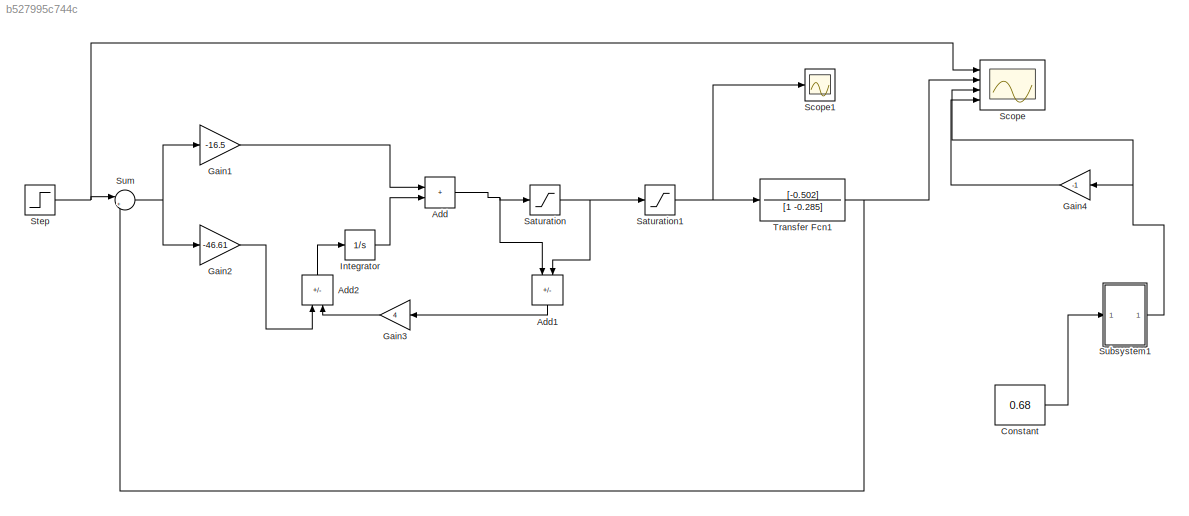
MODEL slx_b527995c744c
KIND model
CONFIG AbsTol = auto
CONFIG EnableMultiTasking = off
CONFIG FixedStep = auto
CONFIG MaxStep = auto
CONFIG MinStep = auto
CONFIG RelTol = 1e-3
CONFIG SampleTimeConstraint = Unconstrained
CONFIG Solver = VariableStepAuto
CONFIG SolverName = VariableStepAuto
CONFIG StartTime = 0.0
CONFIG StopTime = 5
BLOCK [Sum] Add
  IconShape = rectangular
  Ports = [2, 1]
BLOCK [Sum] Add1
  IconShape = rectangular
  Inputs = +-
  NameLocation = right
  Ports = [2, 1]
BLOCK [Sum] Add2
  IconShape = rectangular
  Inputs = +-
  NameLocation = right
  Ports = [2, 1]
BLOCK [Constant] Constant
  Value = 0.68
BLOCK [Gain] Gain1
  Gain = -16.5
BLOCK [Gain] Gain2
  Gain = -46.61
BLOCK [Gain] Gain3
  Gain = 4
BLOCK [Gain] Gain4
  Gain = -1
BLOCK [Integrator] Integrator
  Ports = [1, 1]
BLOCK [Saturate] Saturation
  LowerLimit = -0.6
  UpperLimit = 0.6
BLOCK [Saturate] Saturation1
  LowerLimit = -0.6
  UpperLimit = 0.6
BLOCK [Scope] Scope
  Floating = off
  NumInputPorts = 4
  Ports = [4]
  ScopeSpecificationString = Simulink.scopes.TimeScopeBlockCfg('CurrentConfiguration', extmgr.ConfigurationSet(extmgr.Configuration('Core','General UI',true),extmgr.Configuration('Core','Source UI',true),extmgr.Configuration('Sources','WiredSimulink',true),extmgr.Configuration('Visuals','Time Domain',true,'SerializedDisplays',{struct('MinYLimReal','-1.57','MaxYLimReal','2.1087','YLabelReal','','MinYLimMag','0.00000','MaxYLimM...<+1426ch>
BLOCK [Scope] Scope1
  Floating = off
  NumInputPorts = 1
  Ports = [1]
  ScopeSpecificationString = Simulink.scopes.TimeScopeBlockCfg('CurrentConfiguration', extmgr.ConfigurationSet(extmgr.Configuration('Core','General UI',true),extmgr.Configuration('Core','Source UI',true),extmgr.Configuration('Sources','WiredSimulink',true,'DataLoggingVariableName','ScopeData1'),extmgr.Configuration('Visuals','Time Domain',true,'SerializedDisplays',{struct('MinYLimReal','-0.73956','MaxYLimReal','0.65602','YLab...<+1399ch>
BLOCK [Step] Step
  After = 0.7853
  SampleTime = 0
  Time = 0
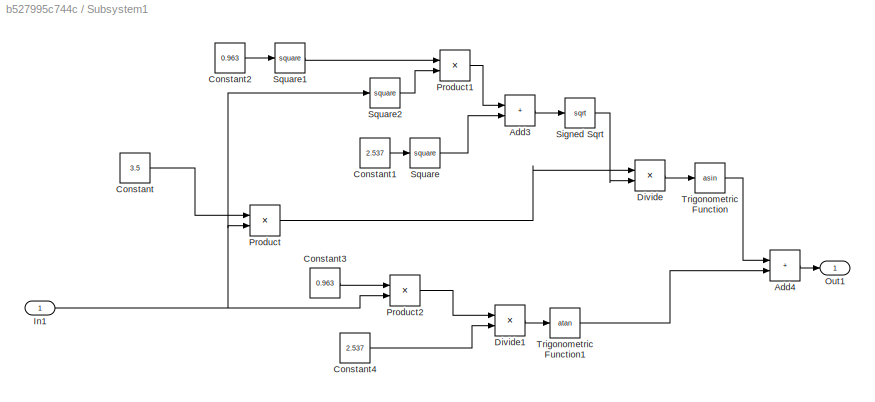
BLOCK [SubSystem] Subsystem1
  Ports = [1, 1]
  RequestExecContextInheritance = off
BLOCK [Sum] Subsystem1/Add3
  IconShape = rectangular
  Ports = [2, 1]
BLOCK [Sum] Subsystem1/Add4
  IconShape = rectangular
  Ports = [2, 1]
BLOCK [Constant] Subsystem1/Constant
  Value = 3.5
BLOCK [Constant] Subsystem1/Constant1
  Value = 2.537
BLOCK [Constant] Subsystem1/Constant2
  Value = 0.963
BLOCK [Constant] Subsystem1/Constant3
  Value = 0.963
BLOCK [Constant] Subsystem1/Constant4
  Value = 2.537
BLOCK [Product] Subsystem1/Divide
  Inputs = */
  Ports = [2, 1]
BLOCK [Product] Subsystem1/Divide1
  Inputs = */
  Ports = [2, 1]
BLOCK [Inport] Subsystem1/In1
BLOCK [Outport] Subsystem1/Out1
BLOCK [Product] Subsystem1/Product
  Ports = [2, 1]
BLOCK [Product] Subsystem1/Product1
  Ports = [2, 1]
BLOCK [Product] Subsystem1/Product2
  Ports = [2, 1]
BLOCK [Sqrt] Subsystem1/Signed Sqrt
BLOCK [Math] Subsystem1/Square
  Operator = square
  Ports = [1, 1]
BLOCK [Math] Subsystem1/Square1
  Operator = square
  Ports = [1, 1]
BLOCK [Math] Subsystem1/Square2
  Operator = square
  Ports = [1, 1]
BLOCK [Trigonometry] Subsystem1/Trigonometric Function
  Operator = asin
  Ports = [1, 1]
BLOCK [Trigonometry] Subsystem1/Trigonometric Function1
  Operator = atan
  Ports = [1, 1]
BLOCK [Sum] Sum
  Inputs = |+-
  Ports = [2, 1]
BLOCK [TransferFcn] Transfer Fcn1
  Denominator = [1 -0.285]
  Numerator = [-0.502]
LINE Add1:1 -> Gain3:1
LINE Add2:1 -> Integrator:1
NET Add:1 -> Add1:1, Saturation:1
LINE Constant:1 -> Subsystem1:1
LINE Gain1:1 -> Add:1
LINE Gain2:1 -> Add2:1
LINE Gain3:1 -> Add2:2
LINE Gain4:1 -> Scope:4
LINE Integrator:1 -> Add:2
NET Saturation1:1 -> Scope1:1, Transfer Fcn1:1
NET Saturation:1 -> Add1:2, Saturation1:1
NET Step:1 -> Scope:1, Sum:1
LINE Subsystem1/Add3:1 -> Subsystem1/Signed Sqrt:1
LINE Subsystem1/Add4:1 -> Subsystem1/Out1:1
LINE Subsystem1/Constant1:1 -> Subsystem1/Square:1
LINE Subsystem1/Constant2:1 -> Subsystem1/Square1:1
LINE Subsystem1/Constant3:1 -> Subsystem1/Product2:1
LINE Subsystem1/Constant4:1 -> Subsystem1/Divide1:2
LINE Subsystem1/Constant:1 -> Subsystem1/Product:1
LINE Subsystem1/Divide1:1 -> Subsystem1/Trigonometric Function1:1
LINE Subsystem1/Divide:1 -> Subsystem1/Trigonometric Function:1
NET Subsystem1/In1:1 -> Subsystem1/Product2:2, Subsystem1/Product:2, Subsystem1/Square2:1
LINE Subsystem1/Product1:1 -> Subsystem1/Add3:1
LINE Subsystem1/Product2:1 -> Subsystem1/Divide1:1
LINE Subsystem1/Product:1 -> Subsystem1/Divide:1
LINE Subsystem1/Signed Sqrt:1 -> Subsystem1/Divide:2
LINE Subsystem1/Square1:1 -> Subsystem1/Product1:1
LINE Subsystem1/Square2:1 -> Subsystem1/Product1:2
LINE Subsystem1/Square:1 -> Subsystem1/Add3:2
LINE Subsystem1/Trigonometric Function1:1 -> Subsystem1/Add4:2
LINE Subsystem1/Trigonometric Function:1 -> Subsystem1/Add4:1
NET Subsystem1:1 -> Gain4:1, Scope:3
NET Sum:1 -> Gain1:1, Gain2:1
NET Transfer Fcn1:1 -> Scope:2, Sum:2
note: NET lines group one-source signal fan-out (src -> all destinations, sorted); 1:1 wires keep LINE
